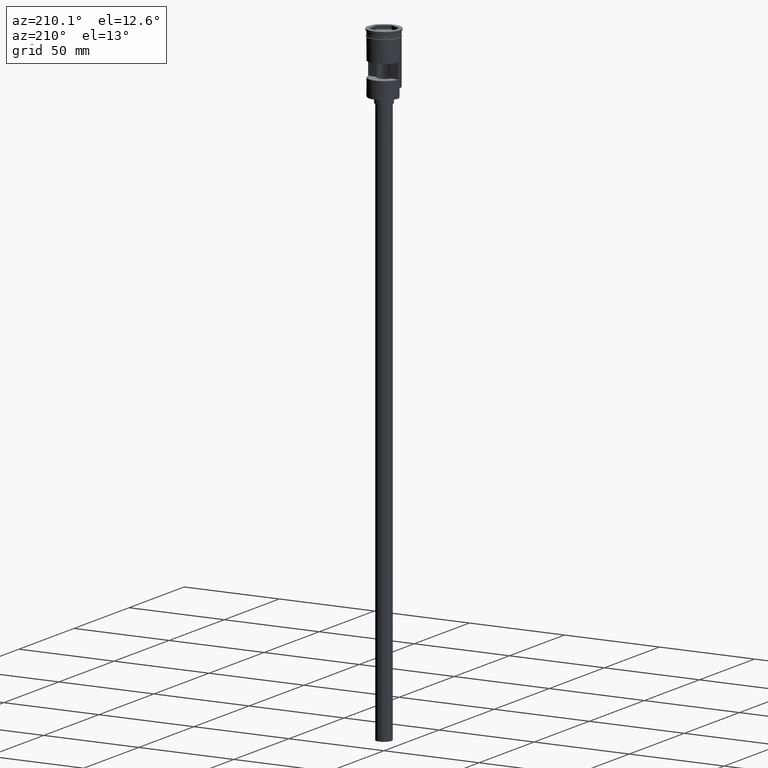
[diagram: clean part render]
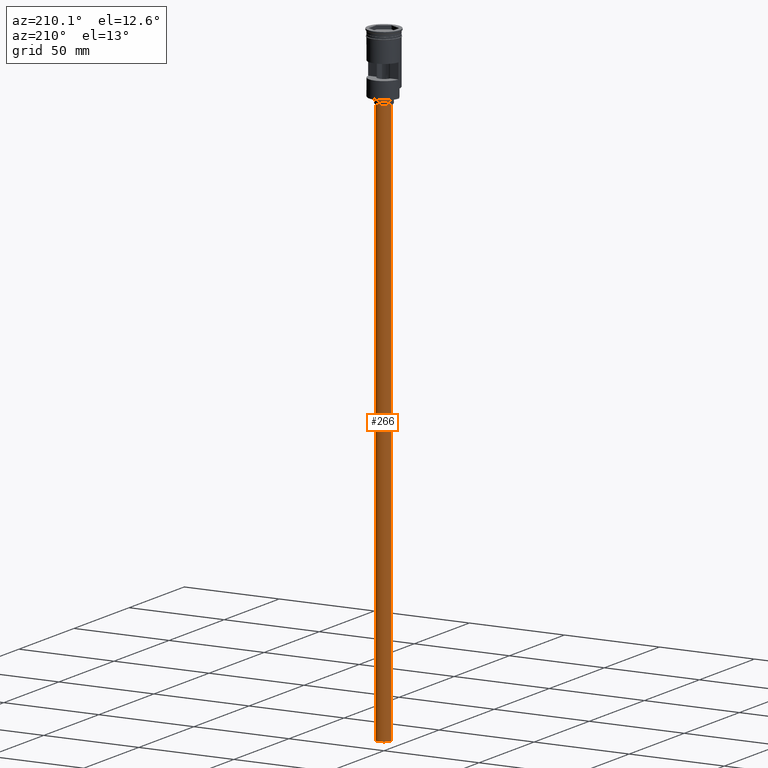
[diagram: same view with one face highlighted and labeled with its STEP entity id]
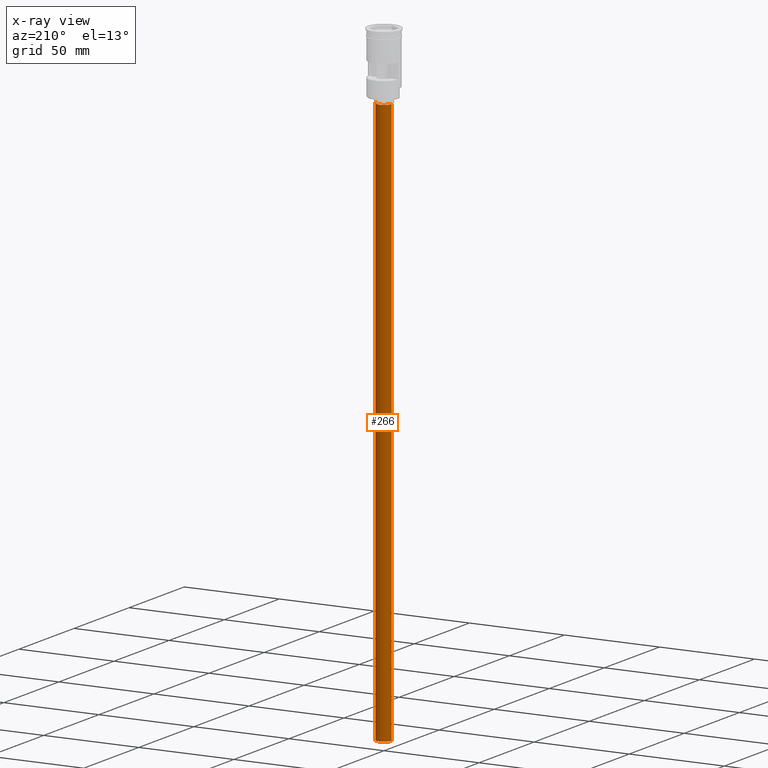
[diagram: x-ray of the same camera — body ghosted, the highlighted face saturated]
A machine part, auxiliary view. The second image highlights one B-rep face of the part: STEP entity #266.
The next image is the same camera in x-ray: the body ghosted, the highlighted face saturated — about 0% of this face is hidden behind the body in this view.
In plain terms, the highlighted cylindrical surface (edge-blend (fillet) strip) has radius 4 mm, axis along (-0, -0, 1).
Its self-contained STEP definition (entity closure, byte-faithful):
#14 = AXIS2_PLACEMENT_3D ( 'NONE', #193, #1197, #566 ) ;
#26 = EDGE_LOOP ( 'NONE', ( #298, #1146, #245, #983 ) ) ;
#41 = CARTESIAN_POINT ( 'NONE',  ( -4.000000000000000000, 4.898587196589412829E-16, -35.00000000000000000 ) ) ;
#42 = DIRECTION ( 'NONE',  ( -1.000000000000000000, 0.000000000000000000, 0.000000000000000000 ) ) ;
#117 = LINE ( 'NONE', #1112, #1521 ) ;
#131 = CIRCLE ( 'NONE', #483, 4.000000000000000000 ) ;
#158 = CARTESIAN_POINT ( 'NONE',  ( 4.000000000000000000, 0.000000000000000000, -331.9999999999999432 ) ) ;
#172 = CARTESIAN_POINT ( 'NONE',  ( -4.000000000000000000, 4.898587196589412829E-16, -331.9999999999999432 ) ) ;
#191 = DIRECTION ( 'NONE',  ( 0.000000000000000000, 0.000000000000000000, -1.000000000000000000 ) ) ;
#193 = CARTESIAN_POINT ( 'NONE',  ( 0.000000000000000000, 0.000000000000000000, -331.9999999999999432 ) ) ;
#230 = VERTEX_POINT ( 'NONE', #587 ) ;
#245 = ORIENTED_EDGE ( 'NONE', *, *, #1177, .T. ) ;
#266 = ADVANCED_FACE ( 'NONE', ( #810 ), #1312, .T. ) ;
#298 = ORIENTED_EDGE ( 'NONE', *, *, #1199, .F. ) ;
#339 = VERTEX_POINT ( 'NONE', #41 ) ;
#483 = AXIS2_PLACEMENT_3D ( 'NONE', #1278, #669, #925 ) ;
#552 = CIRCLE ( 'NONE', #789, 4.000000000000000000 ) ;
#566 = DIRECTION ( 'NONE',  ( 1.000000000000000000, 0.000000000000000000, 0.000000000000000000 ) ) ;
#587 = CARTESIAN_POINT ( 'NONE',  ( 4.000000000000000000, 0.000000000000000000, -331.9999999999999432 ) ) ;
#638 = DIRECTION ( 'NONE',  ( -0.000000000000000000, -0.000000000000000000, 1.000000000000000000 ) ) ;
#644 = CARTESIAN_POINT ( 'NONE',  ( 4.000000000000000000, 0.000000000000000000, -35.00000000000000000 ) ) ;
#649 = DIRECTION ( 'NONE',  ( -0.000000000000000000, -0.000000000000000000, 1.000000000000000000 ) ) ;
#663 = VECTOR ( 'NONE', #649, 1000.000000000000000 ) ;
#669 = DIRECTION ( 'NONE',  ( 0.000000000000000000, 0.000000000000000000, -1.000000000000000000 ) ) ;
#789 = AXIS2_PLACEMENT_3D ( 'NONE', #808, #191, #42 ) ;
#808 = CARTESIAN_POINT ( 'NONE',  ( 0.000000000000000000, 0.000000000000000000, -35.00000000000000000 ) ) ;
#810 = FACE_OUTER_BOUND ( 'NONE', #26, .T. ) ;
#925 = DIRECTION ( 'NONE',  ( -1.000000000000000000, 0.000000000000000000, 0.000000000000000000 ) ) ;
#983 = ORIENTED_EDGE ( 'NONE', *, *, #1441, .F. ) ;
#1028 = EDGE_CURVE ( 'NONE', #1597, #339, #117, .T. ) ;
#1112 = CARTESIAN_POINT ( 'NONE',  ( -4.000000000000000000, 4.898587196589412829E-16, -331.9999999999999432 ) ) ;
#1146 = ORIENTED_EDGE ( 'NONE', *, *, #1028, .T. ) ;
#1177 = EDGE_CURVE ( 'NONE', #339, #1565, #552, .T. ) ;
#1197 = DIRECTION ( 'NONE',  ( -0.000000000000000000, -0.000000000000000000, 1.000000000000000000 ) ) ;
#1199 = EDGE_CURVE ( 'NONE', #1597, #230, #131, .T. ) ;
#1278 = CARTESIAN_POINT ( 'NONE',  ( 0.000000000000000000, 0.000000000000000000, -331.9999999999999432 ) ) ;
#1312 = CYLINDRICAL_SURFACE ( 'NONE', #14, 4.000000000000000000 ) ;
#1393 = LINE ( 'NONE', #158, #663 ) ;
#1441 = EDGE_CURVE ( 'NONE', #230, #1565, #1393, .T. ) ;
#1521 = VECTOR ( 'NONE', #638, 1000.000000000000000 ) ;
#1565 = VERTEX_POINT ( 'NONE', #644 ) ;
#1597 = VERTEX_POINT ( 'NONE', #172 ) ;